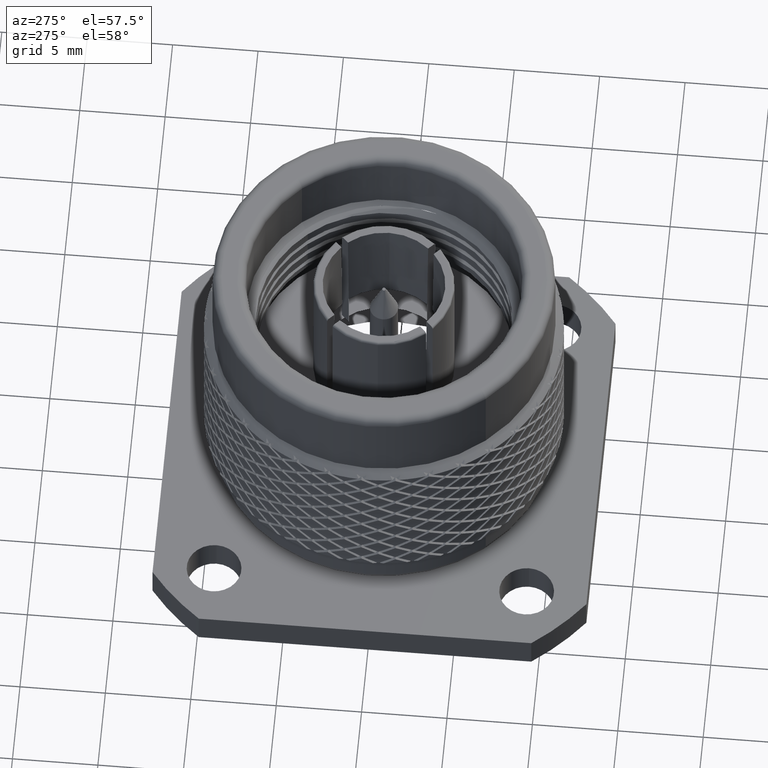
[diagram: clean part render]
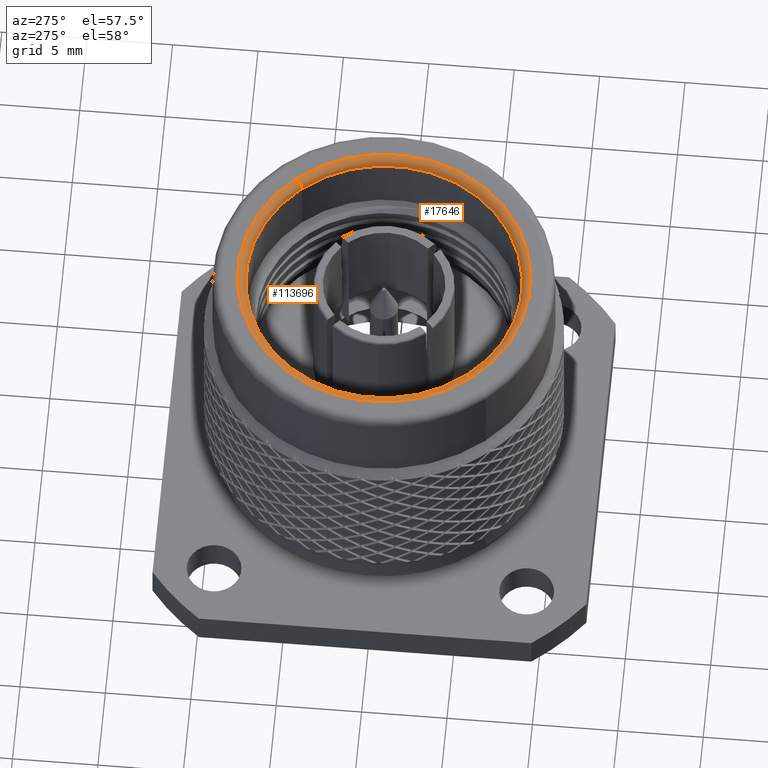
[diagram: same view with one multi-face feature highlighted, each face labeled with its STEP entity id]
A machine part, auxiliary view. The highlighted faces form ONE feature: a constant-radius fillet chain: 2 tangent blend faces with common blend radius 0.5 mm. The faces share edges in the B-rep.
Their STEP definitions:
[1] entity #17646 (Torus):
#5148 = DIRECTION ( 'NONE',  ( -0.7503894050945661975, -0.6609960217140667948, 0.000000000000000000 ) ) ;
#9656 = CARTESIAN_POINT ( 'NONE',  ( 6.051890552087675346, 5.330932915123946181, 19.95000000000000284 ) ) ;
#12174 = TOROIDAL_SURFACE ( 'NONE', #113189, 8.564999999999999503, 0.5000000000000000000 ) ;
#13170 = CARTESIAN_POINT ( 'NONE',  ( 3.659266894335748121E-30, -1.852278283710366355E-15, 19.95000000000000284 ) ) ;
#17646 = ADVANCED_FACE ( 'NONE', ( #47200 ), #12174, .T. ) ;
#26612 = CIRCLE ( 'NONE', #114928, 0.4999999999999999445 ) ;
#27720 = VERTEX_POINT ( 'NONE', #47629 ) ;
#35122 = CARTESIAN_POINT ( 'NONE',  ( -6.051890552087674457, -5.330932915123950622, 19.95000000000000284 ) ) ;
#36354 = ORIENTED_EDGE ( 'NONE', *, *, #94936, .F. ) ;
#38438 = DIRECTION ( 'NONE',  ( 2.341930812374878797E-31, -1.224646799147349509E-16, 1.000000000000000000 ) ) ;
#39789 = CIRCLE ( 'NONE', #54926, 8.064999999999999503 ) ;
#47039 = CIRCLE ( 'NONE', #148040, 8.565000000000001279 ) ;
#47200 = FACE_OUTER_BOUND ( 'NONE', #68212, .T. ) ;
#47568 = DIRECTION ( 'NONE',  ( -0.7503894050945661975, -0.6609960217140669059, 0.000000000000000000 ) ) ;
#47629 = CARTESIAN_POINT ( 'NONE',  ( -6.427085254634960165, -5.661430925980984519, 20.45000000000000284 ) ) ;
#48342 = CARTESIAN_POINT ( 'NONE',  ( -6.427085254634960165, -5.661430925980984519, 19.95000000000000284 ) ) ;
#49884 = DIRECTION ( 'NONE',  ( -0.7503894050945661975, -0.6609960217140669059, 0.000000000000000000 ) ) ;
#51986 = VERTEX_POINT ( 'NONE', #99249 ) ;
#54926 = AXIS2_PLACEMENT_3D ( 'NONE', #75932, #61759, #49884 ) ;
#57592 = ORIENTED_EDGE ( 'NONE', *, *, #88228, .F. ) ;
#60206 = DIRECTION ( 'NONE',  ( -0.6609960217140667948, 0.7503894050945660865, 9.189619830631458210E-17 ) ) ;
#61759 = DIRECTION ( 'NONE',  ( 2.341930812374878797E-31, -1.224646799147349509E-16, 1.000000000000000000 ) ) ;
#68212 = EDGE_LOOP ( 'NONE', ( #57592, #102075, #93562, #36354 ) ) ;
#75932 = CARTESIAN_POINT ( 'NONE',  ( 3.659266894335748121E-30, -1.852278283710366355E-15, 19.95000000000000284 ) ) ;
#83151 = DIRECTION ( 'NONE',  ( 0.7503894050945661975, 0.6609960217140669059, 0.000000000000000000 ) ) ;
#88228 = EDGE_CURVE ( 'NONE', #51986, #27720, #47039, .T. ) ;
#93562 = ORIENTED_EDGE ( 'NONE', *, *, #154770, .F. ) ;
#94906 = VERTEX_POINT ( 'NONE', #9656 ) ;
#94936 = EDGE_CURVE ( 'NONE', #27720, #134140, #26612, .T. ) ;
#98470 = DIRECTION ( 'NONE',  ( -0.7503894050945661975, -0.6609960217140667948, -8.094866622412619552E-17 ) ) ;
#99249 = CARTESIAN_POINT ( 'NONE',  ( 6.427085254634961053, 5.661430925980981854, 20.45000000000000284 ) ) ;
#101531 = CARTESIAN_POINT ( 'NONE',  ( 3.851859888774471706E-30, -1.913510623667733929E-15, 20.45000000000000284 ) ) ;
#102075 = ORIENTED_EDGE ( 'NONE', *, *, #156372, .T. ) ;
#104539 = CARTESIAN_POINT ( 'NONE',  ( 6.427085254634961053, 5.661430925980980966, 19.95000000000000284 ) ) ;
#107927 = CIRCLE ( 'NONE', #128130, 0.4999999999999999445 ) ;
#113189 = AXIS2_PLACEMENT_3D ( 'NONE', #13170, #38438, #98470 ) ;
#114928 = AXIS2_PLACEMENT_3D ( 'NONE', #48342, #60206, #47568 ) ;
#128130 = AXIS2_PLACEMENT_3D ( 'NONE', #104539, #152802, #83151 ) ;
#134140 = VERTEX_POINT ( 'NONE', #35122 ) ;
#141056 = DIRECTION ( 'NONE',  ( -2.341930812374878797E-31, 1.224646799147349509E-16, -1.000000000000000000 ) ) ;
#148040 = AXIS2_PLACEMENT_3D ( 'NONE', #101531, #141056, #5148 ) ;
#152802 = DIRECTION ( 'NONE',  ( 0.6609960217140666838, -0.7503894050945661975, -9.189619830631459442E-17 ) ) ;
#154770 = EDGE_CURVE ( 'NONE', #134140, #94906, #39789, .T. ) ;
#156372 = EDGE_CURVE ( 'NONE', #51986, #94906, #107927, .T. ) ;
[2] entity #113696 (Torus):
#683 = TOROIDAL_SURFACE ( 'NONE', #124325, 8.564999999999999503, 0.5000000000000000000 ) ;
#9656 = CARTESIAN_POINT ( 'NONE',  ( 6.051890552087675346, 5.330932915123946181, 19.95000000000000284 ) ) ;
#20942 = DIRECTION ( 'NONE',  ( -0.7503894050945661975, -0.6609960217140667948, 0.000000000000000000 ) ) ;
#23222 = ORIENTED_EDGE ( 'NONE', *, *, #64031, .F. ) ;
#26612 = CIRCLE ( 'NONE', #114928, 0.4999999999999999445 ) ;
#27720 = VERTEX_POINT ( 'NONE', #47629 ) ;
#32029 = DIRECTION ( 'NONE',  ( -2.341930812374878797E-31, 1.224646799147349509E-16, -1.000000000000000000 ) ) ;
#35122 = CARTESIAN_POINT ( 'NONE',  ( -6.051890552087674457, -5.330932915123950622, 19.95000000000000284 ) ) ;
#39973 = CIRCLE ( 'NONE', #82807, 8.565000000000001279 ) ;
#41734 = DIRECTION ( 'NONE',  ( 2.341930812374878797E-31, -1.224646799147349509E-16, 1.000000000000000000 ) ) ;
#46140 = AXIS2_PLACEMENT_3D ( 'NONE', #138960, #41734, #89889 ) ;
#47568 = DIRECTION ( 'NONE',  ( -0.7503894050945661975, -0.6609960217140669059, 0.000000000000000000 ) ) ;
#47629 = CARTESIAN_POINT ( 'NONE',  ( -6.427085254634960165, -5.661430925980984519, 20.45000000000000284 ) ) ;
#48342 = CARTESIAN_POINT ( 'NONE',  ( -6.427085254634960165, -5.661430925980984519, 19.95000000000000284 ) ) ;
#51896 = CARTESIAN_POINT ( 'NONE',  ( 3.659266894335748121E-30, -1.852278283710366355E-15, 19.95000000000000284 ) ) ;
#51986 = VERTEX_POINT ( 'NONE', #99249 ) ;
#52676 = DIRECTION ( 'NONE',  ( 2.341930812374878797E-31, -1.224646799147349509E-16, 1.000000000000000000 ) ) ;
#60206 = DIRECTION ( 'NONE',  ( -0.6609960217140667948, 0.7503894050945660865, 9.189619830631458210E-17 ) ) ;
#62988 = DIRECTION ( 'NONE',  ( -0.7503894050945661975, -0.6609960217140667948, -8.094866622412619552E-17 ) ) ;
#64031 = EDGE_CURVE ( 'NONE', #27720, #51986, #39973, .T. ) ;
#74884 = ORIENTED_EDGE ( 'NONE', *, *, #104280, .F. ) ;
#76053 = EDGE_LOOP ( 'NONE', ( #95642, #23222, #139007, #74884 ) ) ;
#82807 = AXIS2_PLACEMENT_3D ( 'NONE', #129925, #32029, #20942 ) ;
#83151 = DIRECTION ( 'NONE',  ( 0.7503894050945661975, 0.6609960217140669059, 0.000000000000000000 ) ) ;
#89889 = DIRECTION ( 'NONE',  ( -0.7503894050945661975, -0.6609960217140669059, 0.000000000000000000 ) ) ;
#94906 = VERTEX_POINT ( 'NONE', #9656 ) ;
#94936 = EDGE_CURVE ( 'NONE', #27720, #134140, #26612, .T. ) ;
#95642 = ORIENTED_EDGE ( 'NONE', *, *, #156372, .F. ) ;
#98517 = FACE_OUTER_BOUND ( 'NONE', #76053, .T. ) ;
#99249 = CARTESIAN_POINT ( 'NONE',  ( 6.427085254634961053, 5.661430925980981854, 20.45000000000000284 ) ) ;
#104220 = CIRCLE ( 'NONE', #46140, 8.064999999999999503 ) ;
#104280 = EDGE_CURVE ( 'NONE', #94906, #134140, #104220, .T. ) ;
#104539 = CARTESIAN_POINT ( 'NONE',  ( 6.427085254634961053, 5.661430925980980966, 19.95000000000000284 ) ) ;
#107927 = CIRCLE ( 'NONE', #128130, 0.4999999999999999445 ) ;
#113696 = ADVANCED_FACE ( 'NONE', ( #98517 ), #683, .T. ) ;
#114928 = AXIS2_PLACEMENT_3D ( 'NONE', #48342, #60206, #47568 ) ;
#124325 = AXIS2_PLACEMENT_3D ( 'NONE', #51896, #52676, #62988 ) ;
#128130 = AXIS2_PLACEMENT_3D ( 'NONE', #104539, #152802, #83151 ) ;
#129925 = CARTESIAN_POINT ( 'NONE',  ( 3.851859888774471706E-30, -1.913510623667733929E-15, 20.45000000000000284 ) ) ;
#134140 = VERTEX_POINT ( 'NONE', #35122 ) ;
#138960 = CARTESIAN_POINT ( 'NONE',  ( 3.659266894335748121E-30, -1.852278283710366355E-15, 19.95000000000000284 ) ) ;
#139007 = ORIENTED_EDGE ( 'NONE', *, *, #94936, .T. ) ;
#152802 = DIRECTION ( 'NONE',  ( 0.6609960217140666838, -0.7503894050945661975, -9.189619830631459442E-17 ) ) ;
#156372 = EDGE_CURVE ( 'NONE', #51986, #94906, #107927, .T. ) ;